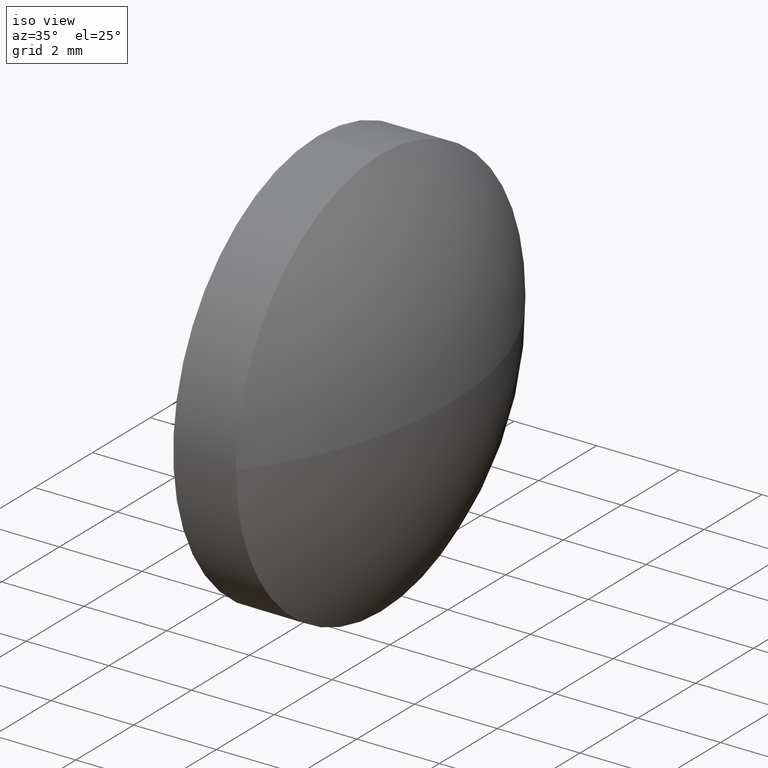
[diagram: clean part render]
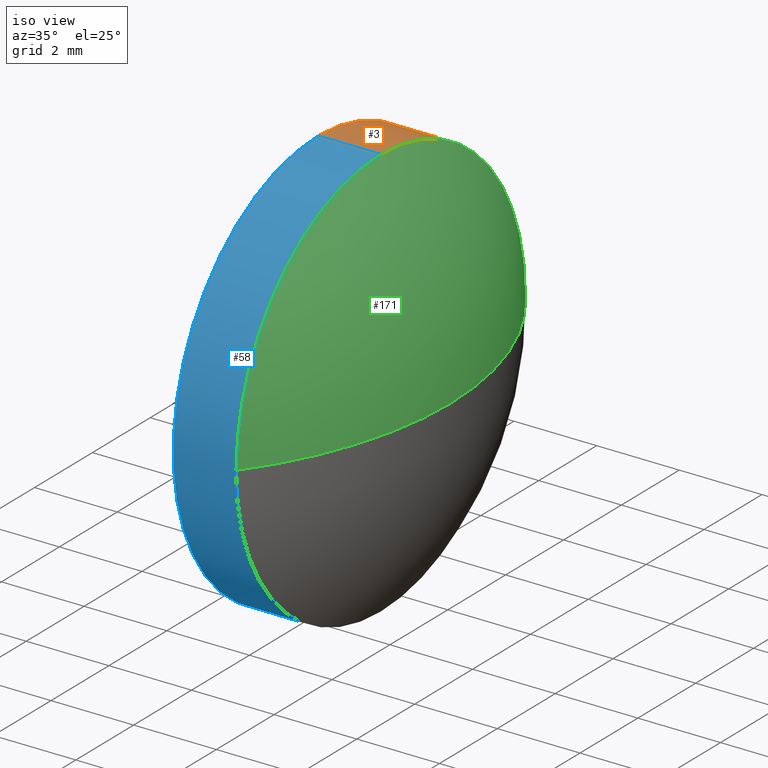
[diagram: same view with three faces highlighted in distinct colors, each labeled with its STEP entity id]
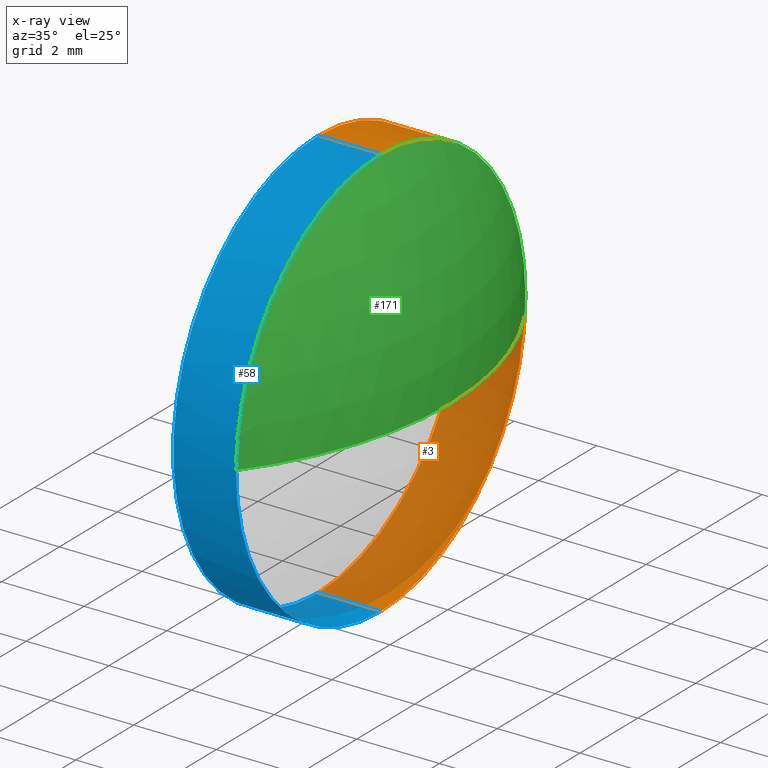
[diagram: x-ray of the same camera — body ghosted, the three highlighted faces saturated]
A machine part, iso view with three faces highlighted in distinct colors.
The next image is the same camera in x-ray (body ghosted, the three faces saturated) — at least one of them is partly hidden behind the body in this view.
Their STEP definitions:

[orange] entity #3 — the highlighted cylindrical surface (partial cylindrical patch) has radius 5 mm, axis along (-1, -0, -0).
#3 = ADVANCED_FACE ( 'NONE', ( #140 ), #104, .T. ) ;
#6 = LINE ( 'NONE', #98, #17 ) ;
#7 = AXIS2_PLACEMENT_3D ( 'NONE', #15, #45, #136 ) ;
#8 = EDGE_LOOP ( 'NONE', ( #25, #172, #67, #148, #77 ) ) ;
#12 = EDGE_CURVE ( 'NONE', #134, #60, #37, .T. ) ;
#15 = CARTESIAN_POINT ( 'NONE',  ( 552.7663889861640900, 146.7847069453768000, 0.0000000000000000000 ) ) ;
#16 = AXIS2_PLACEMENT_3D ( 'NONE', #117, #50, #33 ) ;
#17 = VECTOR ( 'NONE', #57, 1000.000000000000000 ) ;
#25 = ORIENTED_EDGE ( 'NONE', *, *, #41, .T. ) ;
#26 = CARTESIAN_POINT ( 'NONE',  ( 553.7079394579385500, 146.7847069453768000, 5.000000000000004400 ) ) ;
#29 = AXIS2_PLACEMENT_3D ( 'NONE', #146, #64, #66 ) ;
#30 = CIRCLE ( 'NONE', #16, 5.000000000000004400 ) ;
#33 = DIRECTION ( 'NONE',  ( 0.0000000000000000000, 0.0000000000000000000, 1.000000000000000000 ) ) ;
#34 = CARTESIAN_POINT ( 'NONE',  ( 553.7079394579385500, 146.7847069453768000, 0.0000000000000000000 ) ) ;
#37 = LINE ( 'NONE', #150, #68 ) ;
#41 = EDGE_CURVE ( 'NONE', #176, #134, #59, .T. ) ;
#45 = DIRECTION ( 'NONE',  ( -1.000000000000000000, -0.0000000000000000000, -0.0000000000000000000 ) ) ;
#50 = DIRECTION ( 'NONE',  ( -1.000000000000000000, -0.0000000000000000000, -0.0000000000000000000 ) ) ;
#57 = DIRECTION ( 'NONE',  ( -1.000000000000000000, -0.0000000000000000000, -0.0000000000000000000 ) ) ;
#59 = CIRCLE ( 'NONE', #29, 5.000000000000004400 ) ;
#60 = VERTEX_POINT ( 'NONE', #99 ) ;
#64 = DIRECTION ( 'NONE',  ( -1.000000000000000000, -0.0000000000000000000, -0.0000000000000000000 ) ) ;
#66 = DIRECTION ( 'NONE',  ( 0.0000000000000000000, 0.0000000000000000000, 1.000000000000000000 ) ) ;
#67 = ORIENTED_EDGE ( 'NONE', *, *, #152, .F. ) ;
#68 = VECTOR ( 'NONE', #70, 1000.000000000000000 ) ;
#70 = DIRECTION ( 'NONE',  ( -1.000000000000000000, -0.0000000000000000000, -0.0000000000000000000 ) ) ;
#73 = VERTEX_POINT ( 'NONE', #26 ) ;
#77 = ORIENTED_EDGE ( 'NONE', *, *, #112, .T. ) ;
#79 = DIRECTION ( 'NONE',  ( 0.0000000000000000000, 0.0000000000000000000, 1.000000000000000000 ) ) ;
#83 = CARTESIAN_POINT ( 'NONE',  ( 555.2279394579384200, 146.7847069453768000, 5.000000000000004400 ) ) ;
#92 = CARTESIAN_POINT ( 'NONE',  ( 555.2279394579384200, 151.7847069453768000, 0.0000000000000000000 ) ) ;
#98 = CARTESIAN_POINT ( 'NONE',  ( 552.7663889861640900, 146.7847069453768000, 5.000000000000004400 ) ) ;
#99 = CARTESIAN_POINT ( 'NONE',  ( 553.7079394579385500, 146.7847069453768000, -5.000000000000004400 ) ) ;
#101 = DIRECTION ( 'NONE',  ( -1.000000000000000000, -0.0000000000000000000, -0.0000000000000000000 ) ) ;
#104 = CYLINDRICAL_SURFACE ( 'NONE', #7, 5.000000000000004400 ) ;
#112 = EDGE_CURVE ( 'NONE', #130, #176, #30, .T. ) ;
#115 = CIRCLE ( 'NONE', #122, 5.000000000000004400 ) ;
#117 = CARTESIAN_POINT ( 'NONE',  ( 555.2279394579384200, 146.7847069453768000, 0.0000000000000000000 ) ) ;
#122 = AXIS2_PLACEMENT_3D ( 'NONE', #34, #101, #79 ) ;
#130 = VERTEX_POINT ( 'NONE', #83 ) ;
#134 = VERTEX_POINT ( 'NONE', #163 ) ;
#136 = DIRECTION ( 'NONE',  ( 0.0000000000000000000, 0.0000000000000000000, 1.000000000000000000 ) ) ;
#140 = FACE_OUTER_BOUND ( 'NONE', #8, .T. ) ;
#146 = CARTESIAN_POINT ( 'NONE',  ( 555.2279394579384200, 146.7847069453768000, 0.0000000000000000000 ) ) ;
#147 = EDGE_CURVE ( 'NONE', #130, #73, #6, .T. ) ;
#148 = ORIENTED_EDGE ( 'NONE', *, *, #147, .F. ) ;
#150 = CARTESIAN_POINT ( 'NONE',  ( 552.7663889861640900, 146.7847069453768000, -5.000000000000004400 ) ) ;
#152 = EDGE_CURVE ( 'NONE', #73, #60, #115, .T. ) ;
#163 = CARTESIAN_POINT ( 'NONE',  ( 555.2279394579384200, 146.7847069453768000, -5.000000000000004400 ) ) ;
#172 = ORIENTED_EDGE ( 'NONE', *, *, #12, .T. ) ;
#176 = VERTEX_POINT ( 'NONE', #92 ) ;

[blue] entity #58 — the highlighted cylindrical surface (partial cylindrical patch) has radius 5 mm, axis along (-1, -0, -0).
#4 = AXIS2_PLACEMENT_3D ( 'NONE', #164, #181, #96 ) ;
#5 = DIRECTION ( 'NONE',  ( 0.0000000000000000000, 0.0000000000000000000, 1.000000000000000000 ) ) ;
#6 = LINE ( 'NONE', #98, #17 ) ;
#12 = EDGE_CURVE ( 'NONE', #134, #60, #37, .T. ) ;
#17 = VECTOR ( 'NONE', #57, 1000.000000000000000 ) ;
#18 = CARTESIAN_POINT ( 'NONE',  ( 555.2279394579384200, 146.7847069453768000, 0.0000000000000000000 ) ) ;
#19 = EDGE_CURVE ( 'NONE', #103, #130, #110, .T. ) ;
#21 = CARTESIAN_POINT ( 'NONE',  ( 555.2279394579384200, 141.7847069453768000, -6.123233995736770200E-016 ) ) ;
#26 = CARTESIAN_POINT ( 'NONE',  ( 553.7079394579385500, 146.7847069453768000, 5.000000000000004400 ) ) ;
#32 = ORIENTED_EDGE ( 'NONE', *, *, #173, .T. ) ;
#37 = LINE ( 'NONE', #150, #68 ) ;
#46 = AXIS2_PLACEMENT_3D ( 'NONE', #138, #156, #5 ) ;
#48 = CIRCLE ( 'NONE', #46, 5.000000000000004400 ) ;
#49 = CIRCLE ( 'NONE', #55, 5.000000000000004400 ) ;
#55 = AXIS2_PLACEMENT_3D ( 'NONE', #129, #102, #120 ) ;
#56 = FACE_OUTER_BOUND ( 'NONE', #149, .T. ) ;
#57 = DIRECTION ( 'NONE',  ( -1.000000000000000000, -0.0000000000000000000, -0.0000000000000000000 ) ) ;
#58 = ADVANCED_FACE ( 'NONE', ( #56 ), #170, .T. ) ;
#60 = VERTEX_POINT ( 'NONE', #99 ) ;
#68 = VECTOR ( 'NONE', #70, 1000.000000000000000 ) ;
#69 = DIRECTION ( 'NONE',  ( 0.0000000000000000000, 0.0000000000000000000, 1.000000000000000000 ) ) ;
#70 = DIRECTION ( 'NONE',  ( -1.000000000000000000, -0.0000000000000000000, -0.0000000000000000000 ) ) ;
#73 = VERTEX_POINT ( 'NONE', #26 ) ;
#83 = CARTESIAN_POINT ( 'NONE',  ( 555.2279394579384200, 146.7847069453768000, 5.000000000000004400 ) ) ;
#84 = ORIENTED_EDGE ( 'NONE', *, *, #12, .F. ) ;
#96 = DIRECTION ( 'NONE',  ( 0.0000000000000000000, 0.0000000000000000000, 1.000000000000000000 ) ) ;
#98 = CARTESIAN_POINT ( 'NONE',  ( 552.7663889861640900, 146.7847069453768000, 5.000000000000004400 ) ) ;
#99 = CARTESIAN_POINT ( 'NONE',  ( 553.7079394579385500, 146.7847069453768000, -5.000000000000004400 ) ) ;
#102 = DIRECTION ( 'NONE',  ( -1.000000000000000000, -0.0000000000000000000, -0.0000000000000000000 ) ) ;
#103 = VERTEX_POINT ( 'NONE', #21 ) ;
#110 = CIRCLE ( 'NONE', #186, 5.000000000000004400 ) ;
#111 = DIRECTION ( 'NONE',  ( -1.000000000000000000, -0.0000000000000000000, -0.0000000000000000000 ) ) ;
#120 = DIRECTION ( 'NONE',  ( 0.0000000000000000000, 0.0000000000000000000, 1.000000000000000000 ) ) ;
#126 = ORIENTED_EDGE ( 'NONE', *, *, #141, .F. ) ;
#129 = CARTESIAN_POINT ( 'NONE',  ( 555.2279394579384200, 146.7847069453768000, 0.0000000000000000000 ) ) ;
#130 = VERTEX_POINT ( 'NONE', #83 ) ;
#134 = VERTEX_POINT ( 'NONE', #163 ) ;
#138 = CARTESIAN_POINT ( 'NONE',  ( 553.7079394579385500, 146.7847069453768000, 0.0000000000000000000 ) ) ;
#141 = EDGE_CURVE ( 'NONE', #60, #73, #48, .T. ) ;
#144 = ORIENTED_EDGE ( 'NONE', *, *, #147, .T. ) ;
#147 = EDGE_CURVE ( 'NONE', #130, #73, #6, .T. ) ;
#149 = EDGE_LOOP ( 'NONE', ( #84, #32, #166, #144, #126 ) ) ;
#150 = CARTESIAN_POINT ( 'NONE',  ( 552.7663889861640900, 146.7847069453768000, -5.000000000000004400 ) ) ;
#156 = DIRECTION ( 'NONE',  ( -1.000000000000000000, -0.0000000000000000000, -0.0000000000000000000 ) ) ;
#163 = CARTESIAN_POINT ( 'NONE',  ( 555.2279394579384200, 146.7847069453768000, -5.000000000000004400 ) ) ;
#164 = CARTESIAN_POINT ( 'NONE',  ( 552.7663889861640900, 146.7847069453768000, 0.0000000000000000000 ) ) ;
#166 = ORIENTED_EDGE ( 'NONE', *, *, #19, .T. ) ;
#170 = CYLINDRICAL_SURFACE ( 'NONE', #4, 5.000000000000004400 ) ;
#173 = EDGE_CURVE ( 'NONE', #134, #103, #49, .T. ) ;
#181 = DIRECTION ( 'NONE',  ( -1.000000000000000000, -0.0000000000000000000, -0.0000000000000000000 ) ) ;
#186 = AXIS2_PLACEMENT_3D ( 'NONE', #18, #111, #69 ) ;

[green] entity #171 — the highlighted spherical surface has radius 8.2805 mm.
#9 = EDGE_LOOP ( 'NONE', ( #168, #139, #76, #44 ) ) ;
#16 = AXIS2_PLACEMENT_3D ( 'NONE', #117, #50, #33 ) ;
#18 = CARTESIAN_POINT ( 'NONE',  ( 555.2279394579384200, 146.7847069453768000, 0.0000000000000000000 ) ) ;
#19 = EDGE_CURVE ( 'NONE', #103, #130, #110, .T. ) ;
#21 = CARTESIAN_POINT ( 'NONE',  ( 555.2279394579384200, 141.7847069453768000, -6.123233995736770200E-016 ) ) ;
#30 = CIRCLE ( 'NONE', #16, 5.000000000000004400 ) ;
#33 = DIRECTION ( 'NONE',  ( 0.0000000000000000000, 0.0000000000000000000, 1.000000000000000000 ) ) ;
#36 = VERTEX_POINT ( 'NONE', #82 ) ;
#38 = DIRECTION ( 'NONE',  ( 0.0000000000000000000, 1.224646799147353200E-016, -1.000000000000000000 ) ) ;
#44 = ORIENTED_EDGE ( 'NONE', *, *, #19, .F. ) ;
#47 = AXIS2_PLACEMENT_3D ( 'NONE', #131, #159, #78 ) ;
#50 = DIRECTION ( 'NONE',  ( -1.000000000000000000, -0.0000000000000000000, -0.0000000000000000000 ) ) ;
#63 = CARTESIAN_POINT ( 'NONE',  ( 548.6274632674624200, 146.7847069453768000, 0.0000000000000000000 ) ) ;
#69 = DIRECTION ( 'NONE',  ( 0.0000000000000000000, 0.0000000000000000000, 1.000000000000000000 ) ) ;
#76 = ORIENTED_EDGE ( 'NONE', *, *, #112, .F. ) ;
#78 = DIRECTION ( 'NONE',  ( 0.0000000000000000000, 1.000000000000000000, 0.0000000000000000000 ) ) ;
#80 = DIRECTION ( 'NONE',  ( 0.0000000000000000000, 1.000000000000000000, 1.224646799147353900E-016 ) ) ;
#81 = CIRCLE ( 'NONE', #162, 8.280476190476115100 ) ;
#82 = CARTESIAN_POINT ( 'NONE',  ( 556.9079394579384800, 146.7847069453768000, 0.0000000000000000000 ) ) ;
#83 = CARTESIAN_POINT ( 'NONE',  ( 555.2279394579384200, 146.7847069453768000, 5.000000000000004400 ) ) ;
#86 = FACE_OUTER_BOUND ( 'NONE', #9, .T. ) ;
#89 = CIRCLE ( 'NONE', #116, 8.280476190476115100 ) ;
#92 = CARTESIAN_POINT ( 'NONE',  ( 555.2279394579384200, 151.7847069453768000, 0.0000000000000000000 ) ) ;
#103 = VERTEX_POINT ( 'NONE', #21 ) ;
#110 = CIRCLE ( 'NONE', #186, 5.000000000000004400 ) ;
#111 = DIRECTION ( 'NONE',  ( -1.000000000000000000, -0.0000000000000000000, -0.0000000000000000000 ) ) ;
#112 = EDGE_CURVE ( 'NONE', #130, #176, #30, .T. ) ;
#116 = AXIS2_PLACEMENT_3D ( 'NONE', #167, #183, #180 ) ;
#117 = CARTESIAN_POINT ( 'NONE',  ( 555.2279394579384200, 146.7847069453768000, 0.0000000000000000000 ) ) ;
#127 = EDGE_CURVE ( 'NONE', #36, #176, #89, .T. ) ;
#130 = VERTEX_POINT ( 'NONE', #83 ) ;
#131 = CARTESIAN_POINT ( 'NONE',  ( 548.6274632674624200, 146.7847069453768000, 0.0000000000000000000 ) ) ;
#139 = ORIENTED_EDGE ( 'NONE', *, *, #127, .T. ) ;
#157 = SPHERICAL_SURFACE ( 'NONE', #47, 8.280476190476118600 ) ;
#159 = DIRECTION ( 'NONE',  ( -0.0000000000000000000, 0.0000000000000000000, -1.000000000000000000 ) ) ;
#161 = EDGE_CURVE ( 'NONE', #36, #103, #81, .T. ) ;
#162 = AXIS2_PLACEMENT_3D ( 'NONE', #63, #38, #80 ) ;
#167 = CARTESIAN_POINT ( 'NONE',  ( 548.6274632674624200, 146.7847069453768000, 0.0000000000000000000 ) ) ;
#168 = ORIENTED_EDGE ( 'NONE', *, *, #161, .F. ) ;
#171 = ADVANCED_FACE ( 'NONE', ( #86 ), #157, .T. ) ;
#176 = VERTEX_POINT ( 'NONE', #92 ) ;
#180 = DIRECTION ( 'NONE',  ( 1.000000000000000000, 0.0000000000000000000, 0.0000000000000000000 ) ) ;
#183 = DIRECTION ( 'NONE',  ( -0.0000000000000000000, 0.0000000000000000000, 1.000000000000000000 ) ) ;
#186 = AXIS2_PLACEMENT_3D ( 'NONE', #18, #111, #69 ) ;